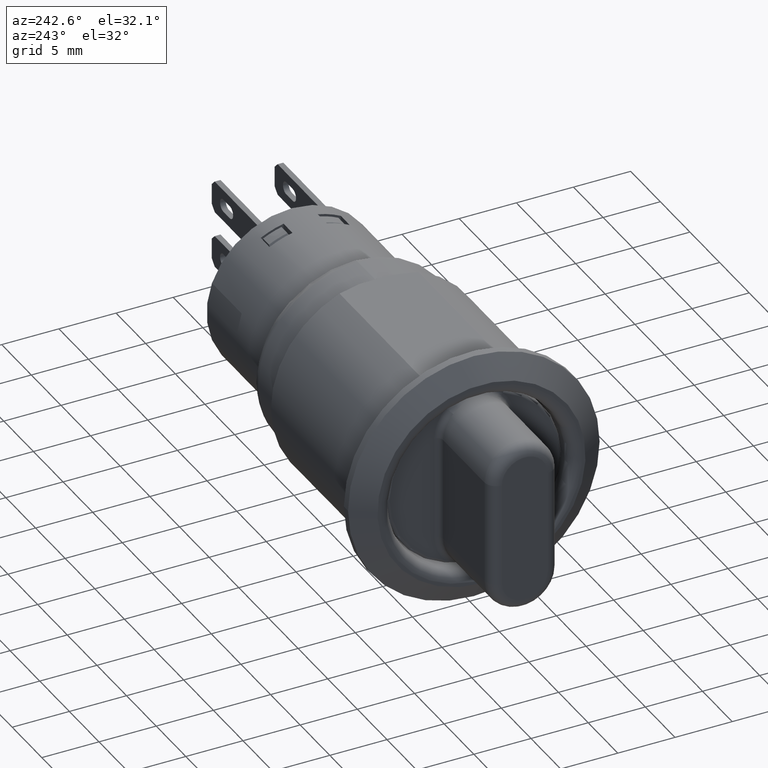
[diagram: clean part render]
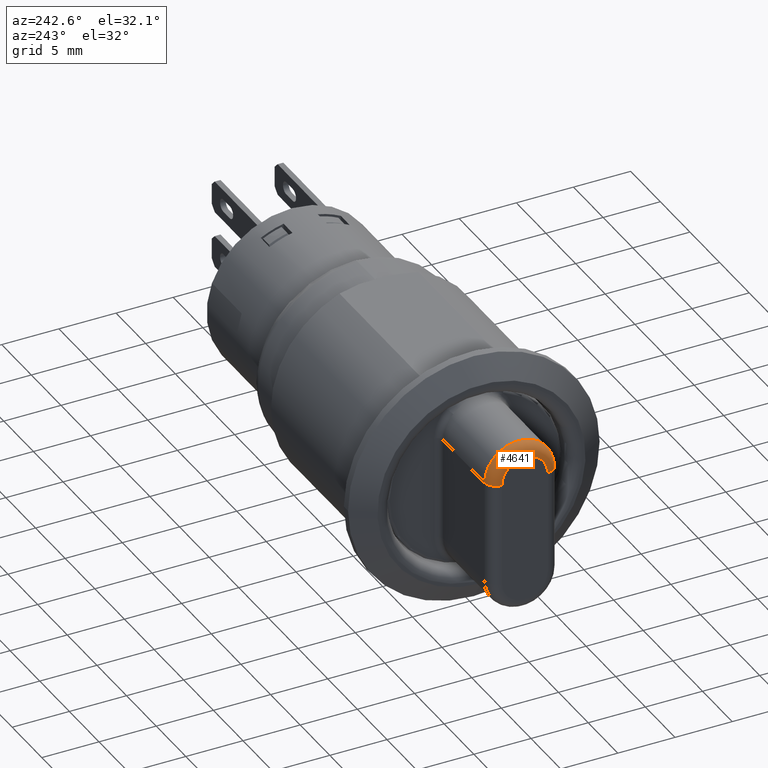
[diagram: same view with one face highlighted and labeled with its STEP entity id]
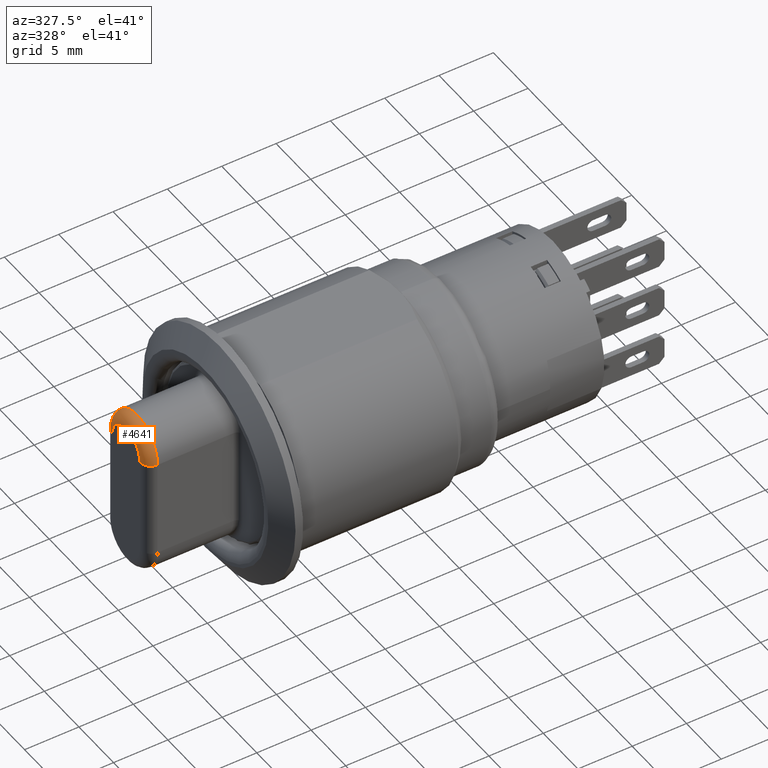
[diagram: same view with one face highlighted and labeled with its STEP entity id]
A machine part, auxiliary view. The second image highlights one B-rep face of the part: STEP entity #4641.
A second angle (auxiliary view) of the same face is appended — the face is thin or edge-on in the first view.
In plain terms, the highlighted toroidal blend (fillet) surface has major radius 2 mm and minor (blend) radius 1 mm.
Its self-contained STEP definition (entity closure, byte-faithful):
#156=CIRCLE('',#4931,0.118110236220472);
#164=CIRCLE('',#4942,0.0393700787401575);
#165=CIRCLE('',#4944,0.0393700787401574);
#166=CIRCLE('',#4945,0.078740157480315);
#374=TOROIDAL_SURFACE('',#4943,0.078740157480315,0.0393700787401575);
#392=FACE_OUTER_BOUND('',#650,.T.);
#650=EDGE_LOOP('',(#3111,#3112,#3113,#3114));
#1890=VERTEX_POINT('',#6751);
#1892=VERTEX_POINT('',#6757);
#1897=VERTEX_POINT('',#6774);
#1898=VERTEX_POINT('',#6779);
#2370=EDGE_CURVE('',#1890,#1892,#156,.T.);
#2378=EDGE_CURVE('',#1897,#1892,#164,.T.);
#2381=EDGE_CURVE('',#1898,#1890,#165,.T.);
#2382=EDGE_CURVE('',#1897,#1898,#166,.T.);
#3111=ORIENTED_EDGE('',*,*,#2381,.T.);
#3112=ORIENTED_EDGE('',*,*,#2370,.T.);
#3113=ORIENTED_EDGE('',*,*,#2378,.F.);
#3114=ORIENTED_EDGE('',*,*,#2382,.T.);
#4641=ADVANCED_FACE('',(#392),#374,.T.);
#4931=AXIS2_PLACEMENT_3D('',#6759,#5371,#5372);
#4942=AXIS2_PLACEMENT_3D('',#6775,#5393,#5394);
#4943=AXIS2_PLACEMENT_3D('',#6778,#5397,#5398);
#4944=AXIS2_PLACEMENT_3D('',#6780,#5399,#5400);
#4945=AXIS2_PLACEMENT_3D('',#6781,#5401,#5402);
#5371=DIRECTION('center_axis',(-1.,0.,0.));
#5372=DIRECTION('ref_axis',(0.,5.30886606509382E-16,1.));
#5393=DIRECTION('center_axis',(0.,0.,-1.));
#5394=DIRECTION('ref_axis',(-1.,0.,0.));
#5397=DIRECTION('center_axis',(1.,0.,0.));
#5398=DIRECTION('ref_axis',(0.,-1.,0.));
#5399=DIRECTION('center_axis',(0.,5.55111512312578E-16,1.));
#5400=DIRECTION('ref_axis',(-1.,0.,0.));
#5401=DIRECTION('center_axis',(1.,0.,0.));
#5402=DIRECTION('ref_axis',(0.,5.30886606509382E-16,1.));
#6751=CARTESIAN_POINT('',(-0.326771653543307,-0.118110236220472,0.177165354330709));
#6757=CARTESIAN_POINT('',(-0.326771653543307,0.118110236220472,0.177165354330709));
#6759=CARTESIAN_POINT('Origin',(-0.326771653543307,6.01006558606138E-17,
0.177165354330709));
#6774=CARTESIAN_POINT('',(-0.366141732283465,0.078740157480315,0.177165354330709));
#6775=CARTESIAN_POINT('Origin',(-0.326771653543307,0.078740157480315,0.177165354330709));
#6778=CARTESIAN_POINT('Origin',(-0.326771653543307,6.01006558606138E-17,
0.177165354330709));
#6779=CARTESIAN_POINT('',(-0.366141732283465,-0.0787401574803149,0.177165354330709));
#6780=CARTESIAN_POINT('Origin',(-0.326771653543307,-0.0787401574803149,
0.177165354330709));
#6781=CARTESIAN_POINT('Origin',(-0.366141732283465,6.01006558606138E-17,
0.177165354330709));